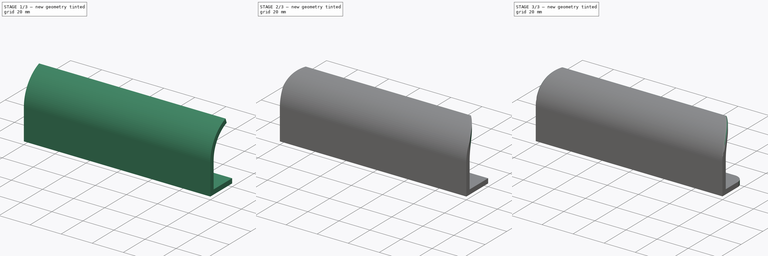
[diagram: build sequence overview — one tinted view per stage of 3, left to right]
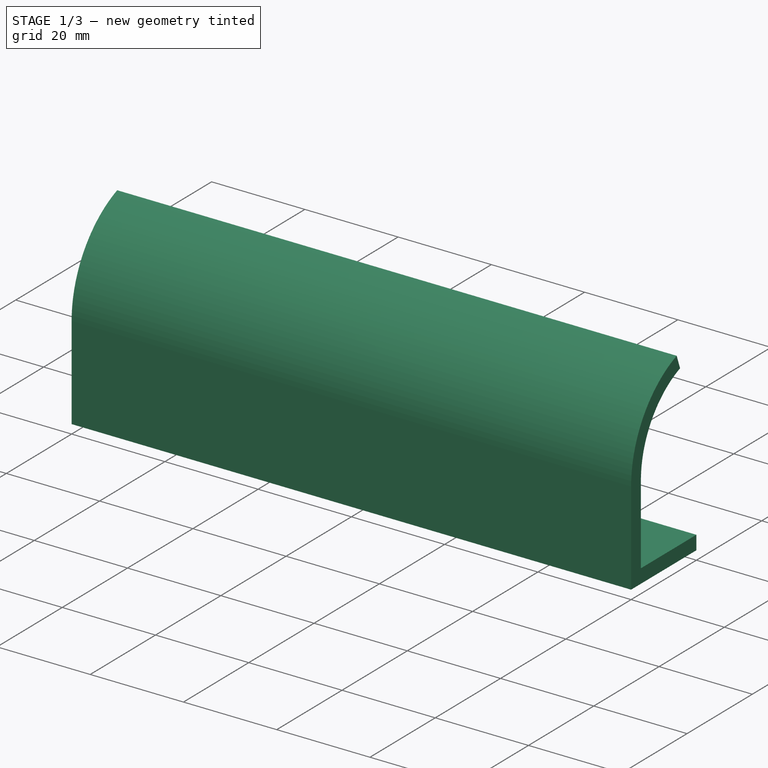
[diagram: stage 1 of 3 — iso view after this stage's code; geometry added in this stage tinted green]
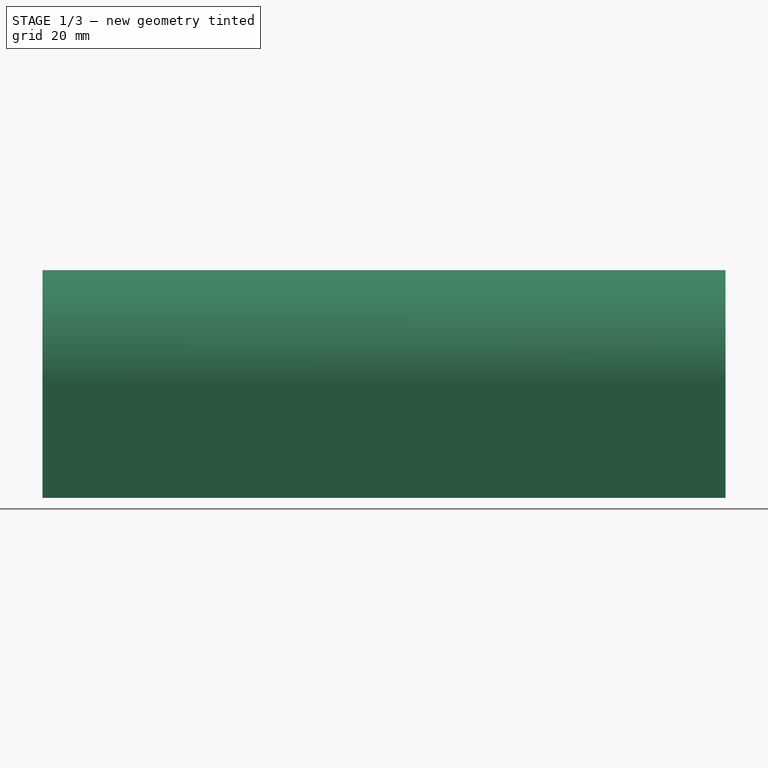
[diagram: stage 1 of 3 — front view after this stage's code; geometry added in this stage tinted green]
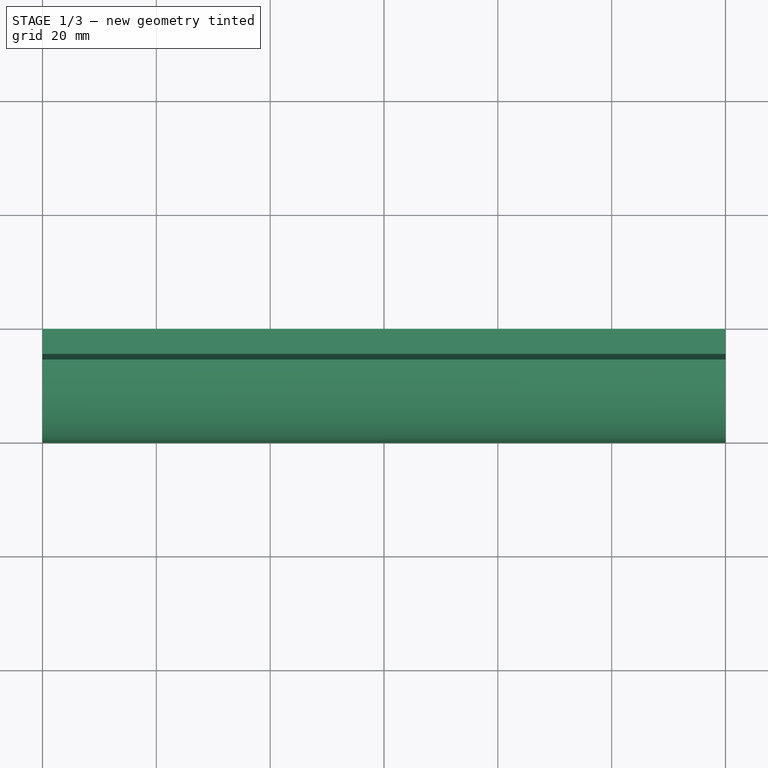
[diagram: stage 1 of 3 — top view after this stage's code; geometry added in this stage tinted green]
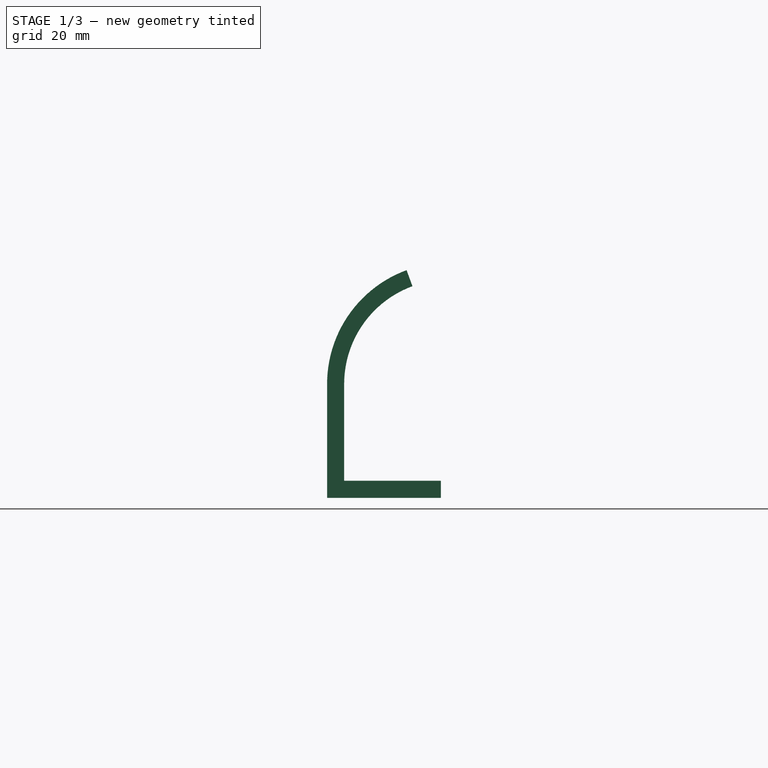
[diagram: stage 1 of 3 — right view after this stage's code; geometry added in this stage tinted green]
FCSTD DOCUMENT  (FreeCAD 2021.1015R24301 +3962 (Git))
Label: handle
License: All rights reserved
LicenseURL: http://en.wikipedia.org/wiki/All_rights_reserved
objects: Sketcher::SketchObject×4, PartDesign::Pocket×2, PartDesign::Fillet×2, PartDesign::Pad×1, PartDesign::LinearPattern×1, PartDesign::Body×1
note: 23 computed .brp shape members not serialized (recipe doc carries the construction recipe); baked Part::Feature solids carry a one-line shape summary decoded from their .brp

FEATURE [Sketcher::SketchObject] Sketch
  FullyConstrained = true
  MapMode = 5
  Placement = pos=(0,0,0) rot=(0.57735,0.57735,0.57735;2.0944rad)
  Support = -> [YZ_Plane]
  sketch-geometry (8):
    g0: LineSegment StartX=20 StartY=0 StartZ=0 EndX=0 EndY=0 EndZ=0
    g1: LineSegment StartX=0 StartY=0 StartZ=0 EndX=0 EndY=20 EndZ=0
    g2: ArcOfCircle CenterX=21.303 CenterY=20 CenterZ=0 NormalX=0 NormalY=0 NormalZ=1 AngleXU=0 Radius=21.303 StartAngle=1.92236 EndAngle=3.14159
    g3: LineSegment StartX=20 StartY=0 StartZ=0 EndX=20 EndY=3 EndZ=0
    g4: LineSegment StartX=20 StartY=3 StartZ=0 EndX=3 EndY=3 EndZ=0
    g5: LineSegment StartX=3 StartY=3 StartZ=0 EndX=3 EndY=20 EndZ=0
    g6: LineSegment StartX=13.9669 StartY=40 StartZ=0 EndX=15 EndY=37.1835 EndZ=0
    g7: ArcOfCircle CenterX=21.303 CenterY=20 CenterZ=0 NormalX=0 NormalY=0 NormalZ=1 AngleXU=0 Radius=18.303 StartAngle=1.92236 EndAngle=3.14159
  constraints (24):
    c: PointOnObject(g0,g-1)
    c: Coincident(g0,g-1)
    c: Coincident(g1,g0)
    c: PointOnObject(g1,g-2)
    c: Coincident(g2,g1)
    c: Coincident(g3,g0)
    c: Vertical(g3)
    c: Coincident(g4,g3)
    c: Horizontal(g4)
    c: Coincident(g5,g4)
    c: Vertical(g5)
    c: Coincident(g6,g2)
    c: Coincident(g7,g2)
    c: Coincident(g7,g5)
    c: Coincident(g7,g6)
    c: Horizontal(g2,g5)
    c: Horizontal(g5,g1)
    c: Perpendicular(g2,g6)
    c: DistanceY(g2) = 40
    c: DistanceX(g0,g0) = 20
    c: DistanceY(g3,g3) = 3
    c: Equal(g3,g6)
    c: DistanceY(g1) = 20
    c: DistanceX(g6) = 15
FEATURE [PartDesign::Pad] Pad
  ClaimChildren = false
  Direction = (1,1,1)
  Fit = 0
  FitJoin = 0
  InnerFit = 0
  InnerFitJoin = 0
  InnerTaperAngle = 0
  InnerTaperAngleRev = 0
  Length = 120
  Length2 = 100
  Linearize = true
  Midplane = true
  NewSolid = false
  Placement = pos=(0,0,0) rot=(0.57735,0.57735,0.57735;2.0944rad)
  Profile = -> Sketch
  Refine = true
  Suppress = false
  Type = 0
  _ProfileBasedVersion = 1
FEATURE [Sketcher::SketchObject] Sketch001
  ExternalGeometry = -> [Pad]
  FullyConstrained = true
  MapMode = 5
  Placement = pos=(-1.2e-15,1.7e-15,3) rot=(0,0,-1;1.5708rad)
  Support = -> [Pad]
  sketch-geometry (2):
    g0: Circle CenterX=-11.5 CenterY=-50 CenterZ=0 NormalX=0 NormalY=0 NormalZ=1 AngleXU=0 Radius=2.25
    g1: LineSegment [constr] StartX=-11.5 StartY=-50 StartZ=0 EndX=-11.5 EndY=-60 EndZ=0
  constraints (5):
    c: Diameter(g0) = 4.5
    c: Coincident(g1,g0)
    c: Vertical(g1)
    c: Symmetric(g-4,g-3,g1)
    c: DistanceY(g1,g1) = 10
FEATURE [PartDesign::Pocket] Pocket
  BaseFeature = -> Pad
  ClaimChildren = false
  Fit = 0
  FitJoin = 0
  InnerFit = 0
  InnerFitJoin = 0
  InnerTaperAngle = 0
  InnerTaperAngleRev = 0
  Length = 5
  Length2 = 100
  Linearize = true
  NewSolid = false
  Placement = pos=(0,0,0) rot=(0.57735,0.57735,0.57735;2.0944rad)
  Profile = -> Sketch001
  Refine = true
  Suppress = false
  Type = 1
  _ProfileBasedVersion = 1
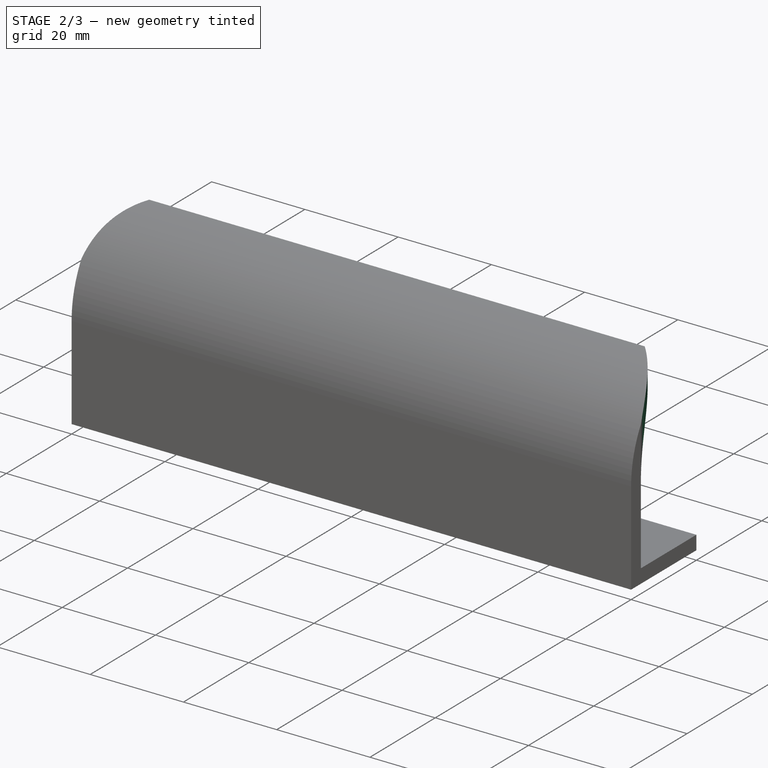
[diagram: stage 2 of 3 — iso view after this stage's code; geometry added in this stage tinted green]
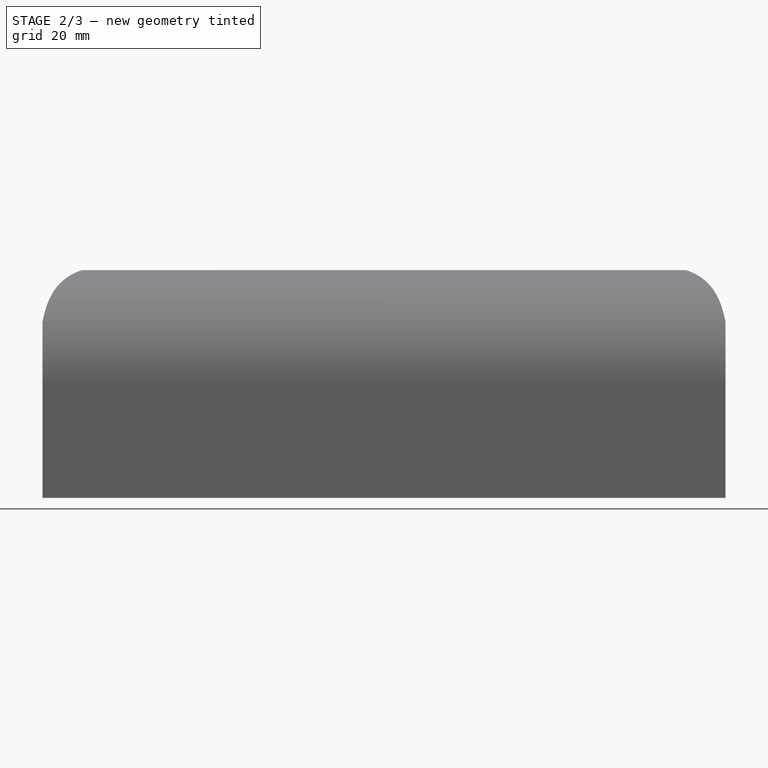
[diagram: stage 2 of 3 — front view after this stage's code; geometry added in this stage tinted green]
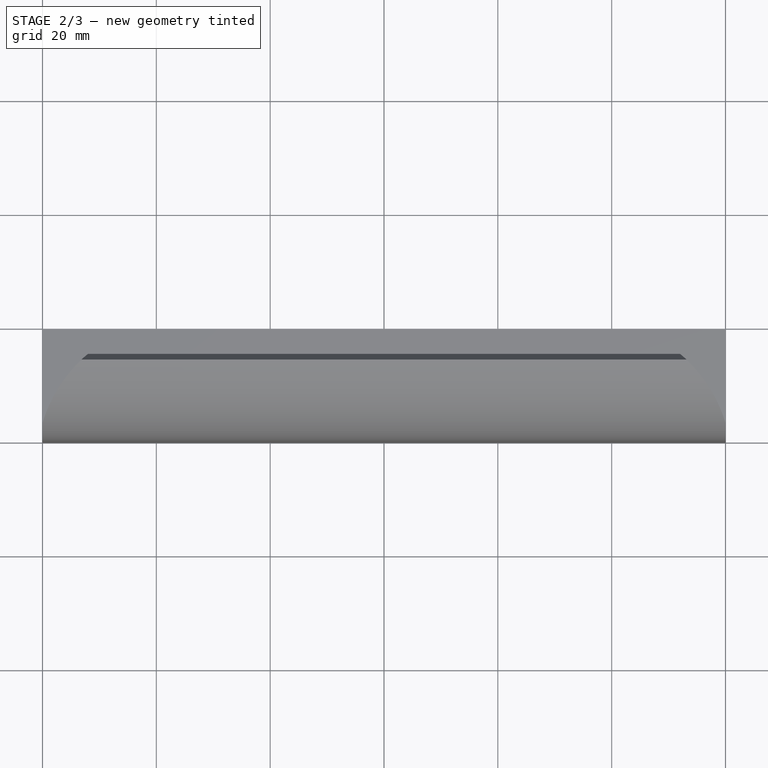
[diagram: stage 2 of 3 — top view after this stage's code; geometry added in this stage tinted green]
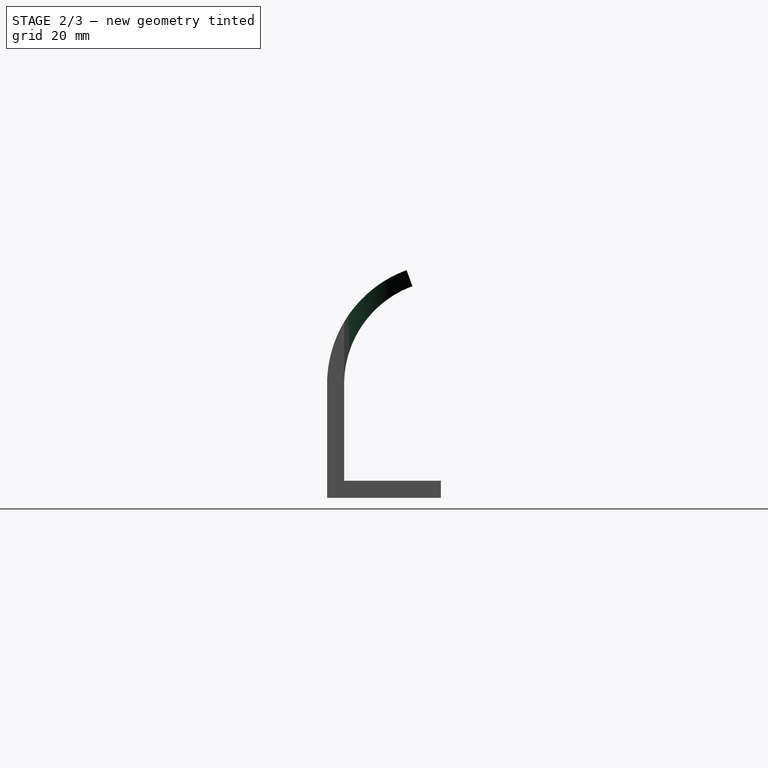
[diagram: stage 2 of 3 — right view after this stage's code; geometry added in this stage tinted green]
FEATURE [Sketcher::SketchObject] Sketch002
  ExternalGeometry = -> [Pocket]
  FullyConstrained = true
  MapMode = 5
  Placement = pos=(-2.2e-15,2e-15,3) rot=(0,0,-1;1.5708rad)
  Support = -> [Pocket]
FEATURE [PartDesign::LinearPattern] LinearPattern
  BaseFeature = -> Pocket
  CopyShape = false
  Direction = -> Sketch001 [V_Axis]
  Length = 100
  NewSolid = false
  Occurrences = 3
  OriginalSubs = -> [Pocket]
  Originals = -> [Pocket]
  ParallelTransform = true
  Placement = pos=(0,0,0) rot=(0.57735,0.57735,0.57735;2.0944rad)
  Refine = true
  SubTransform = true
  Suppress = false
FEATURE [Sketcher::SketchObject] Sketch003
  ExternalGeometry = -> [LinearPattern]
  FullyConstrained = false
  MapMode = 5
  Placement = pos=(-2.2e-15,2e-15,3) rot=(0,0,-1;1.5708rad)
  Support = -> [LinearPattern]
  sketch-geometry (8):
    g0: ArcOfCircle CenterX=5 CenterY=35 CenterZ=0 NormalX=0 NormalY=0 NormalZ=1 AngleXU=0 Radius=26.2488 StartAngle=1.8805 EndAngle=2.4371
    g1: ArcOfCircle CenterX=5 CenterY=-35 CenterZ=0 NormalX=0 NormalY=0 NormalZ=1 AngleXU=0 Radius=26.2488 StartAngle=3.84609 EndAngle=4.40269
    g2: LineSegment StartX=-3 StartY=60 StartZ=0 EndX=8.5256 EndY=63.6882 EndZ=0
    g3: LineSegment StartX=8.5256 StartY=63.6882 StartZ=0 EndX=-27.7733 EndY=63.6882 EndZ=0
    g4: LineSegment StartX=-27.7733 StartY=63.6882 StartZ=0 EndX=-27.7733 EndY=-66.7365 EndZ=0
    g5: LineSegment StartX=-27.7733 StartY=-66.7365 StartZ=0 EndX=-2.43304 EndY=-66.7365 EndZ=0
    g6: LineSegment StartX=-2.43304 StartY=-66.7365 StartZ=0 EndX=-3 EndY=-60 EndZ=0
    g7: LineSegment StartX=-15 StartY=52 StartZ=0 EndX=-15 EndY=-52 EndZ=0
  constraints (18):
    c: Coincident(g0,g-3)
    c: PointOnObject(g0,g-4)
    c: Coincident(g1,g-3)
    c: Symmetric(g0,g1,g-1)
    c: Tangent(g0,g2) = 1.5708
    c: Coincident(g2,g3)
    c: Horizontal(g3)
    c: Coincident(g3,g4)
    c: Vertical(g4)
    c: Coincident(g4,g5)
    c: Horizontal(g5)
    c: Coincident(g5,g6)
    c: Coincident(g6,g1)
    c: Coincident(g7,g0)
    c: Coincident(g7,g1)
    c: Symmetric(g0,g1,g-1)
    c: DistanceX(g1) = 5
    c: DistanceY(g0) = 35
FEATURE [PartDesign::Pocket] Pocket001
  BaseFeature = -> LinearPattern
  ClaimChildren = false
  Fit = 0
  FitJoin = 0
  InnerFit = 0
  InnerFitJoin = 0
  InnerTaperAngle = 0
  InnerTaperAngleRev = 0
  Length = 5
  Length2 = 100
  Linearize = true
  NewSolid = false
  Placement = pos=(0,0,0) rot=(0.57735,0.57735,0.57735;2.0944rad)
  Profile = -> Sketch003
  Refine = true
  Reversed = true
  Suppress = false
  Type = 1
  _ProfileBasedVersion = 1
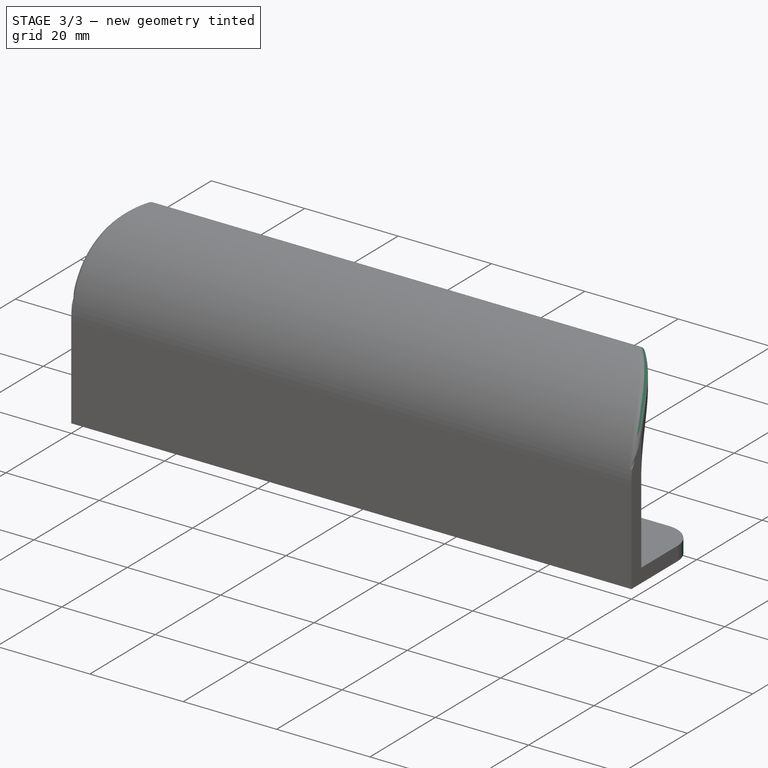
[diagram: stage 3 of 3 — iso view after this stage's code; geometry added in this stage tinted green]
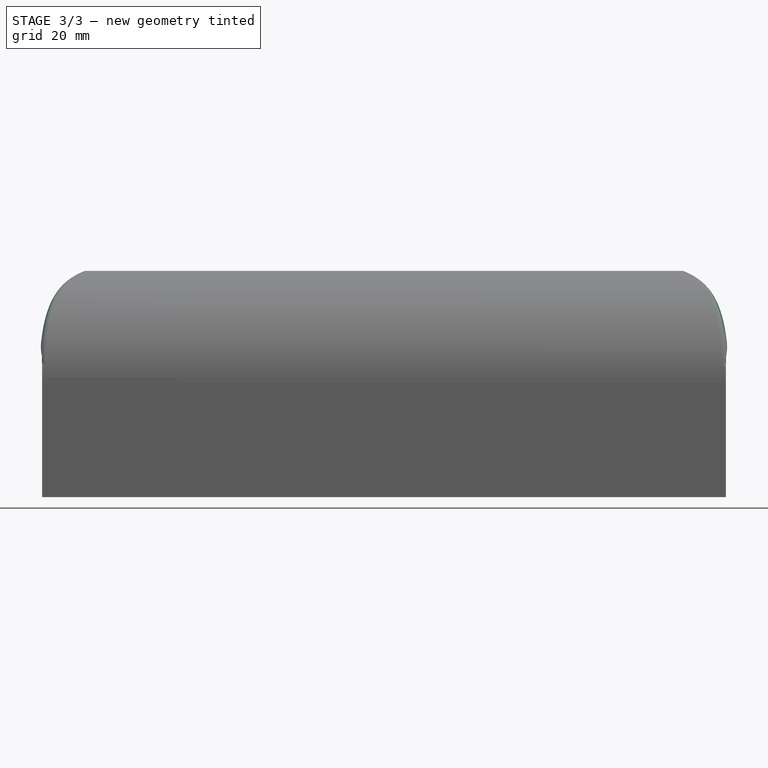
[diagram: stage 3 of 3 — front view after this stage's code; geometry added in this stage tinted green]
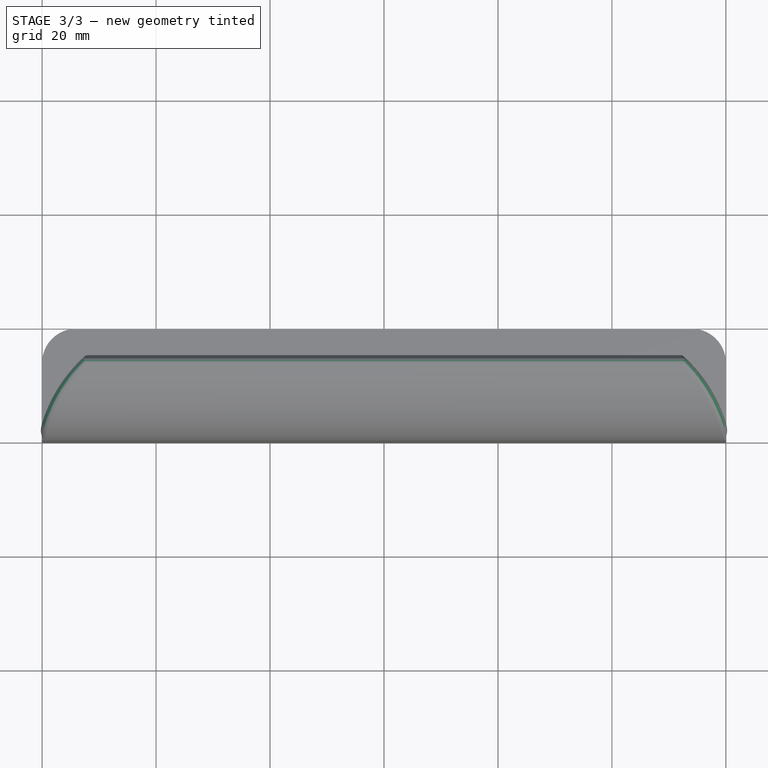
[diagram: stage 3 of 3 — top view after this stage's code; geometry added in this stage tinted green]
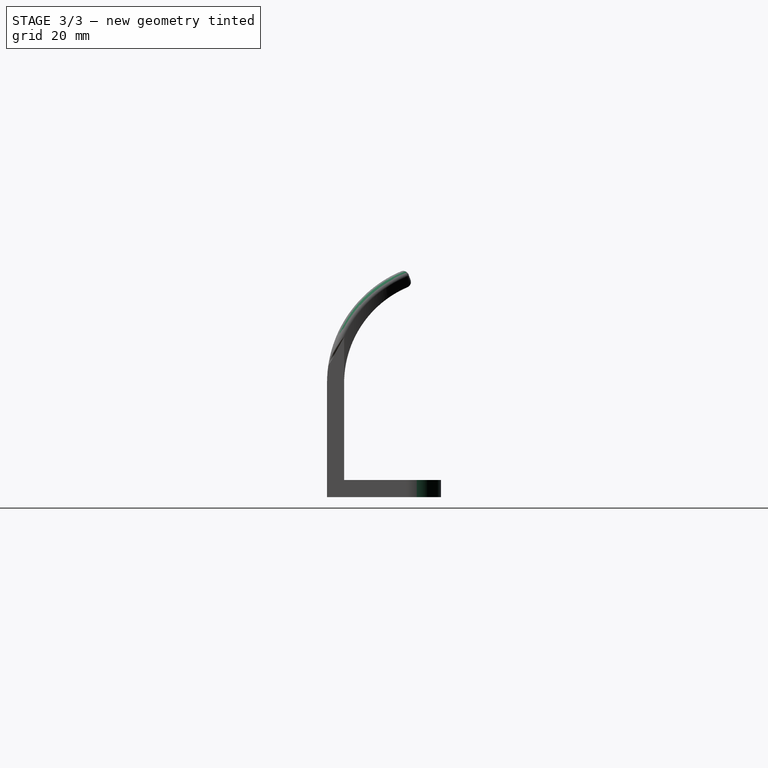
[diagram: stage 3 of 3 — right view after this stage's code; geometry added in this stage tinted green]
FEATURE [PartDesign::Fillet] Fillet
  Base = -> Pocket001 [Face13,Edge28,Edge29]
  BaseFeature = -> Pocket001
  NewSolid = false
  Placement = pos=(0,0,0) rot=(0.57735,0.57735,0.57735;2.0944rad)
  Radius = 1
  Refine = true
  SupportTransform = false
  Suppress = false
FEATURE [PartDesign::Fillet] Fillet001
  Base = -> Fillet [Edge32,Edge4]
  BaseFeature = -> Fillet
  NewSolid = false
  Placement = pos=(0,0,0) rot=(0.57735,0.57735,0.57735;2.0944rad)
  Radius = 6
  Refine = true
  SupportTransform = false
  Suppress = false
FEATURE [PartDesign::Body] Body
  AutoGroupSolids = false
  ExportMode = 0
  Group = -> [Sketch,Pad,Sketch001,Pocket,Sketch002,LinearPattern,Sketch003,Pocket001,Fillet,Fillet001]
  Origin = -> Origin
  Tip = -> Fillet001
  _ExportChildren = -> [Pad,Pocket,Sketch002,LinearPattern,Pocket001,Fillet,Fillet001]
  _GroupVersion = 1
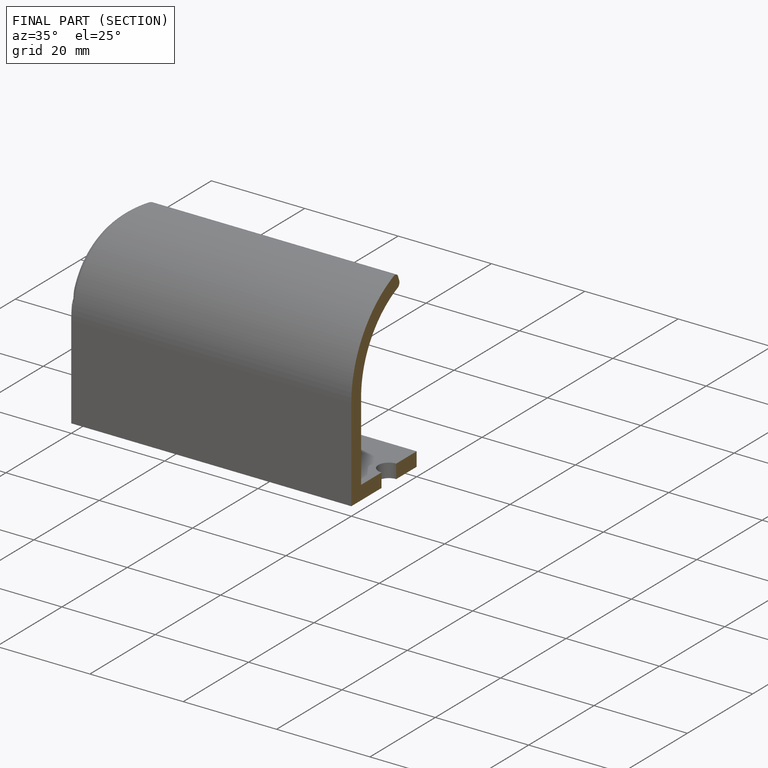
[diagram: finished part — half-section view (interior)]
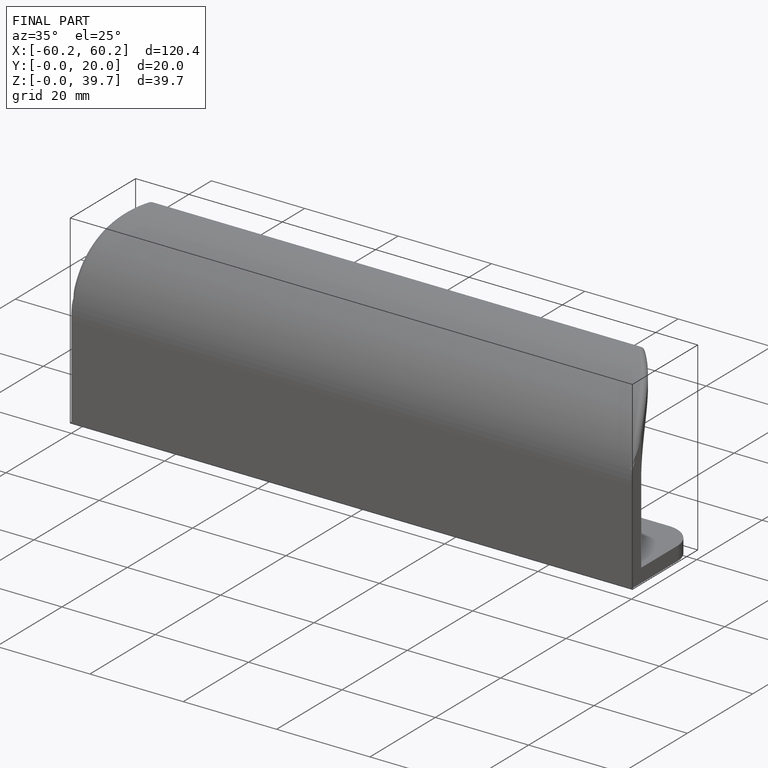
[diagram: finished part — iso view with bounding-box wireframe]
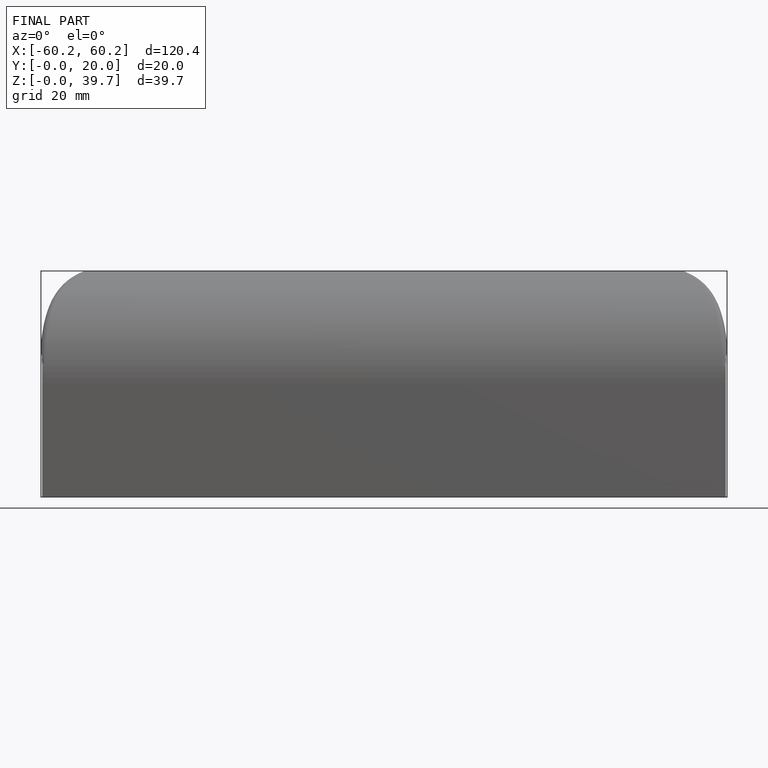
[diagram: finished part — front view with bounding-box wireframe]
